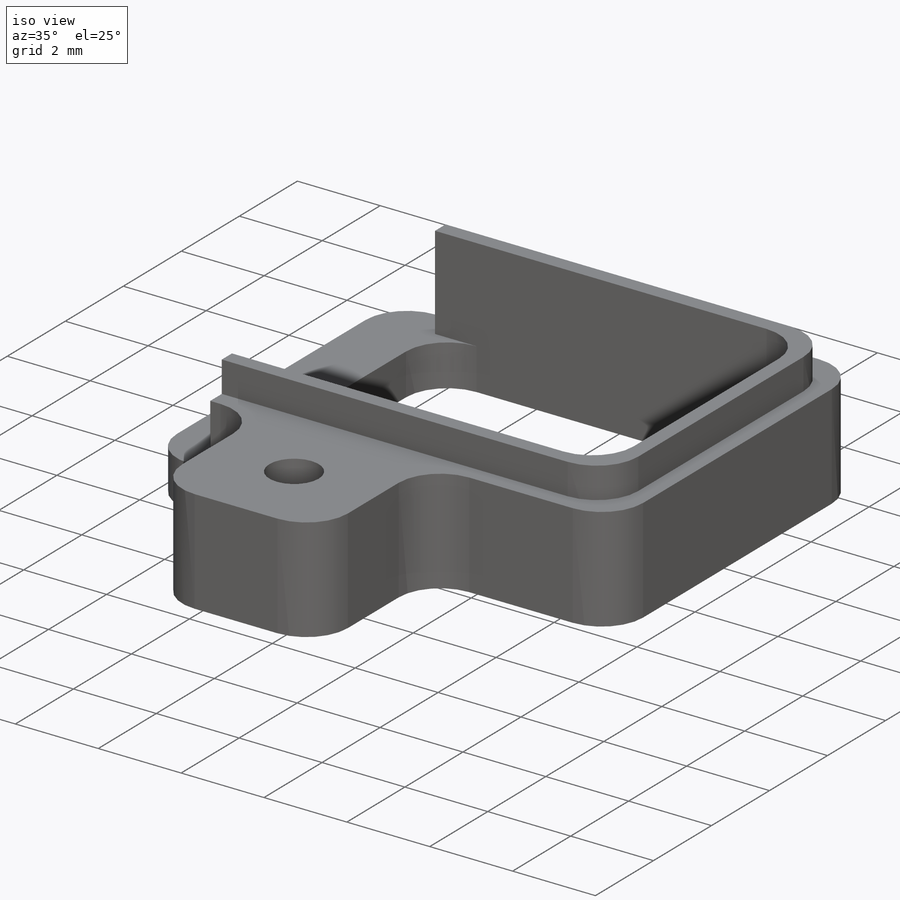
[diagram: iso view]
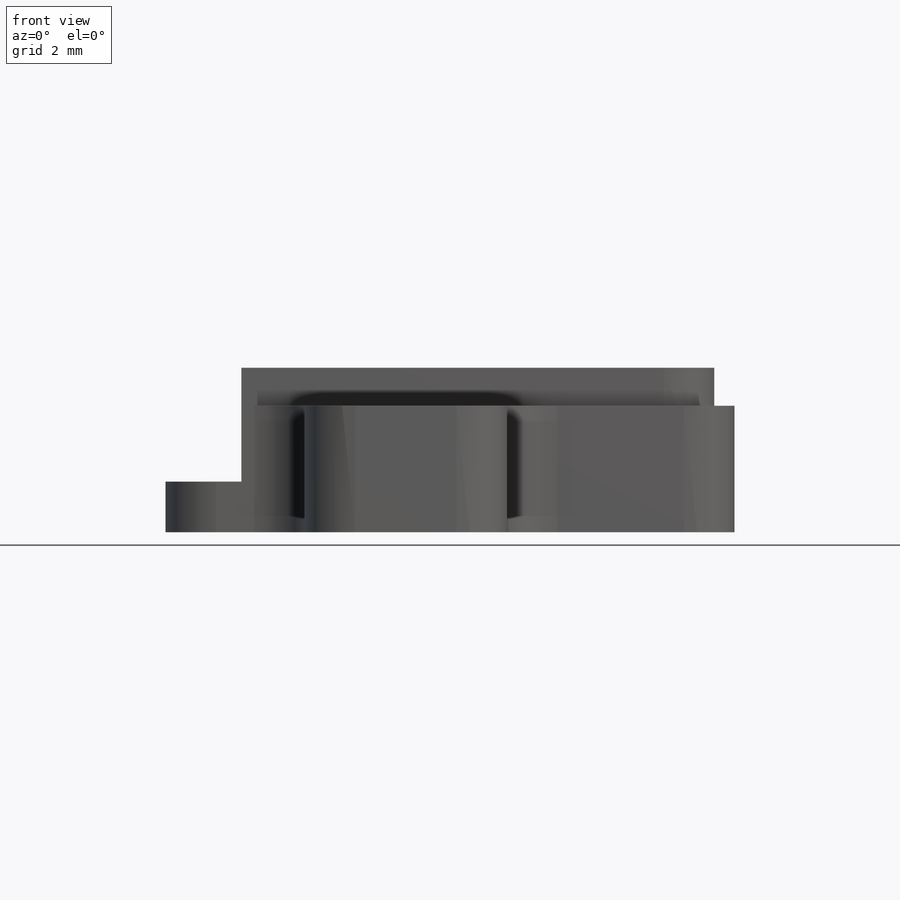
[diagram: front view]
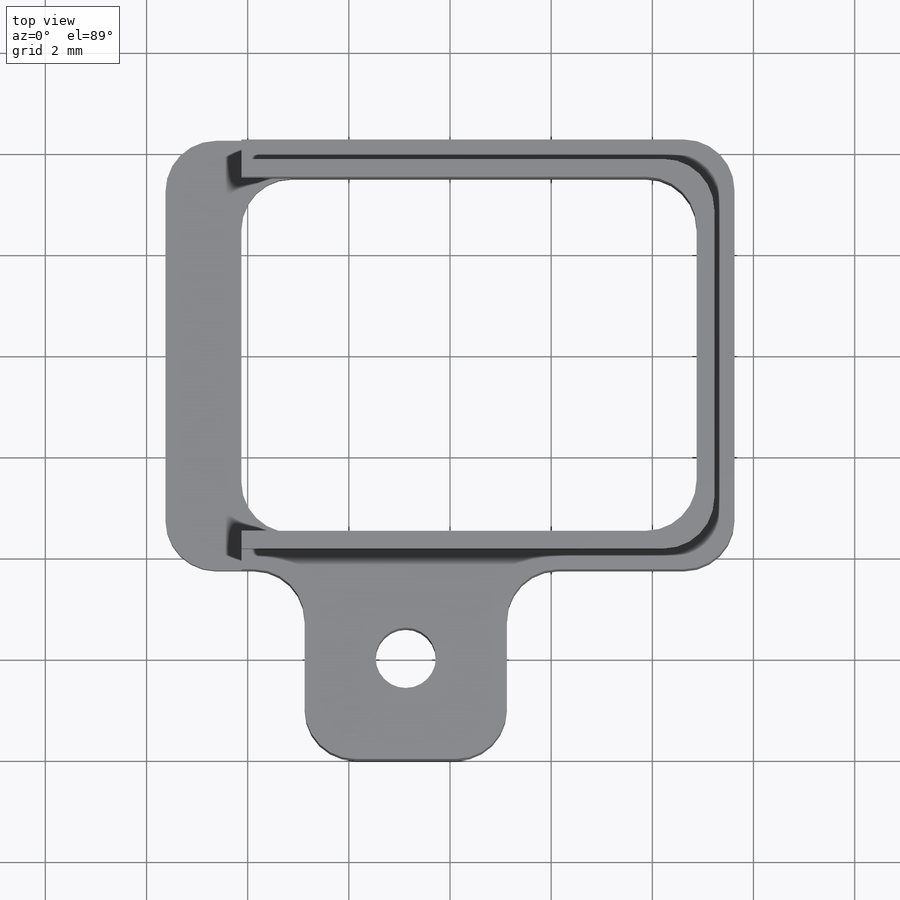
[diagram: top view]
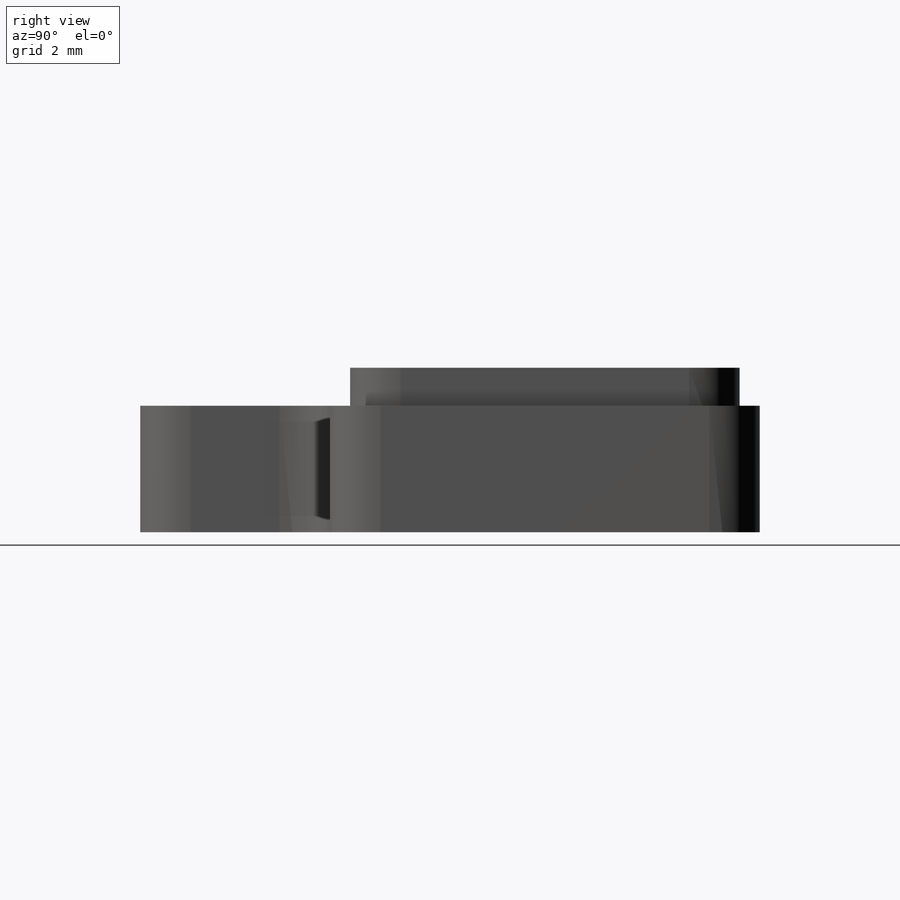
[diagram: right view]
SOLIDWORKS PART (.sldprt)
format: sldprt  version: not decoded by parser v0  size: 230,912 bytes
history: native  units: mm
features: sketch x7, extrude x3, cut_extrude x2, material x1, hole x1, fillet x1 (+16 scaffold rows collapsed)
feature tree (31):
  scaffold x16  (default folders/planes/origin — collapsed)
  material  "Material <not specified>"
  sketch  "Sketch5"  dims[D1=8.5mm D2=11.25mm]
  extrude  "Extrude4"  Depth=2.5mm
  sketch  "Sketch19"  dims[D1=1.5mm]
  cut_extrude  "Extrude12"  Depth=1.5mm
  sketch  "Sketch21"  dims[D1=0.75mm D2=0.75mm D3=0.75mm]
  cut_extrude  "Extrude13"  [1 undecoded]
  sketch  "Sketch22"  dims[c1.D1=4.0mm c1.D2=4.5mm c2.D1=4.0mm c2.D2=4.5mm c2.D3=0.0mm]
  extrude  "Extrude14"  Depth=3.75mm
  sketch  "Sketch24"  dims[D1=0.35mm]
  extrude  "Extrude15"  Depth=0.75mm
  hole  "#0-80 Tapped Hole1"  Diameter=1.19126mm Depth=79.01mm
  sketch  "3DSketch1"  dims[c1.D1=~1.987813mm c1.D3=2.0mm c1.D2=~1.920463mm c2.D1=2.0mm c3.D1=2.0mm c3.D2=2.0mm]
  sketch  "Sketch26"  dims[hole-wizard template sketch: 50 standard entries collapsed; hole parameters above]
  fillet  "Fillet4"  Radius=1mm
decode coverage: 13 of 14 modeling features carry decoded parameters
note: ~ marks probable driven/reference dimensions
note: 1 parameter value undecoded
note: suppression state not decoded; provenance and decode notes live in map.json
